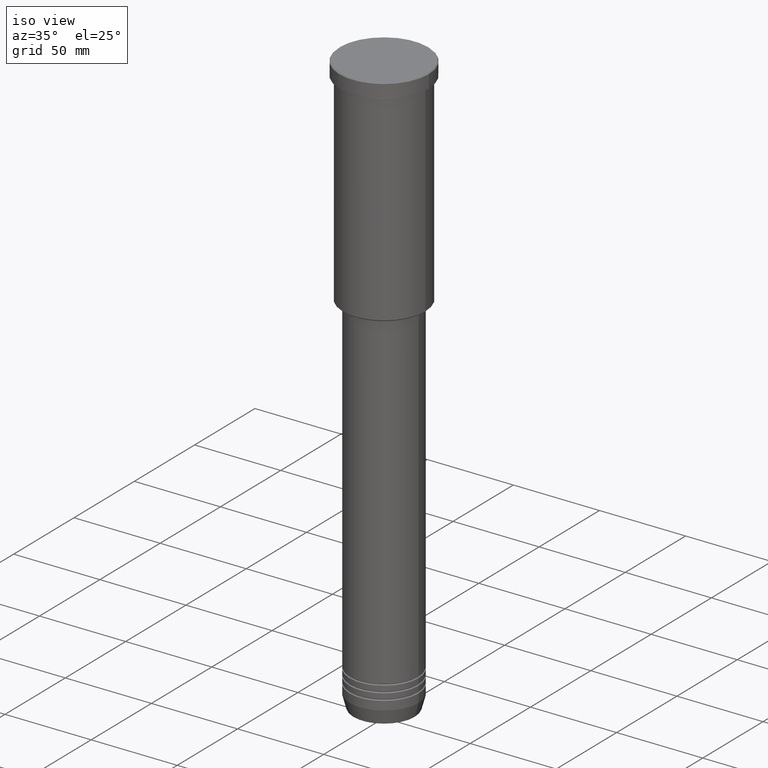
[diagram: clean part render]
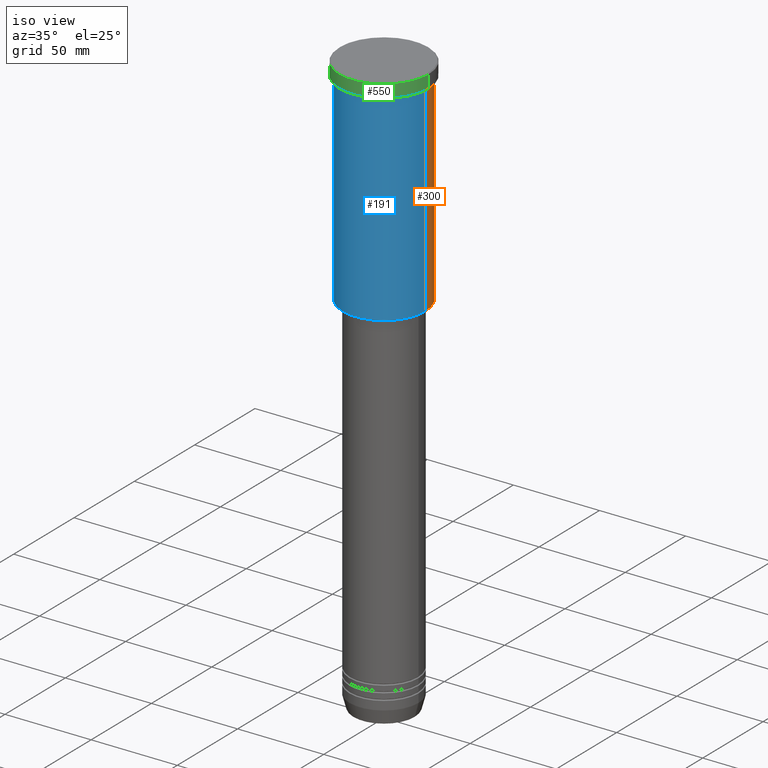
[diagram: same view with three faces highlighted in distinct colors, each labeled with its STEP entity id]
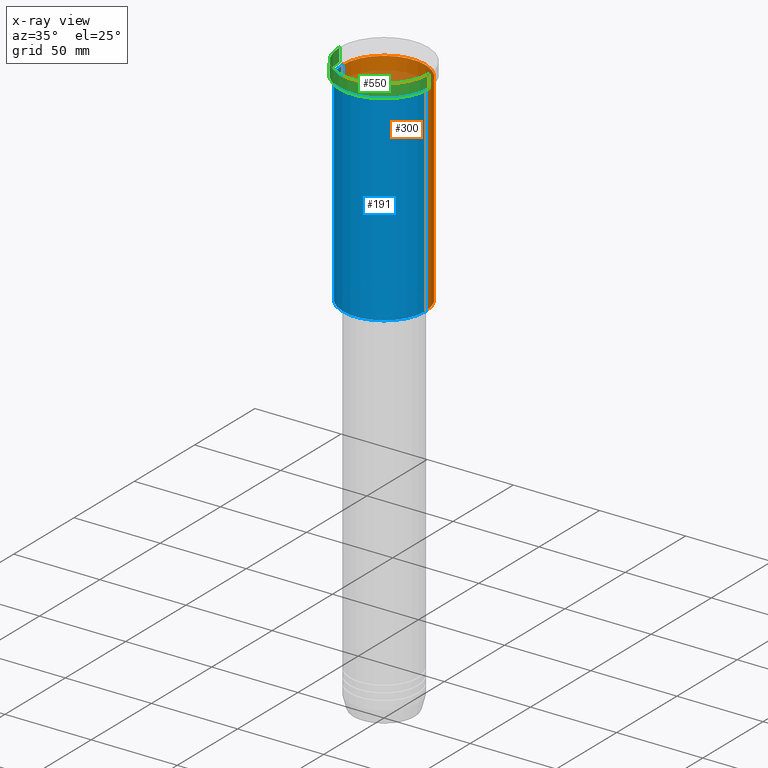
[diagram: x-ray of the same camera — body ghosted, the three highlighted faces saturated]
A machine part, iso view with three faces highlighted in distinct colors.
The next image is the same camera in x-ray (body ghosted, the three faces saturated) — at least one of them is partly hidden behind the body in this view.
Their STEP definitions:

[orange] entity #300 — the highlighted cylindrical surface (partial cylindrical patch) has radius 24 mm, axis along (-0, -0, 1).
#15 = VECTOR ( 'NONE', #1045, 1000.000000000000000 ) ;
#41 = DIRECTION ( 'NONE',  ( -0.000000000000000000, -0.000000000000000000, 1.000000000000000000 ) ) ;
#55 = CARTESIAN_POINT ( 'NONE',  ( 24.00000000000000000, 0.000000000000000000, -8.999999999999994671 ) ) ;
#65 = LINE ( 'NONE', #414, #15 ) ;
#119 = CARTESIAN_POINT ( 'NONE',  ( 0.000000000000000000, 0.000000000000000000, -8.999999999999994671 ) ) ;
#139 = CYLINDRICAL_SURFACE ( 'NONE', #962, 24.00000000000000000 ) ;
#216 = DIRECTION ( 'NONE',  ( -0.000000000000000000, -0.000000000000000000, 1.000000000000000000 ) ) ;
#249 = CIRCLE ( 'NONE', #522, 24.00000000000000000 ) ;
#300 = ADVANCED_FACE ( 'NONE', ( #767 ), #139, .T. ) ;
#303 = ORIENTED_EDGE ( 'NONE', *, *, #1013, .T. ) ;
#305 = CARTESIAN_POINT ( 'NONE',  ( 0.000000000000000000, 0.000000000000000000, 0.000000000000000000 ) ) ;
#309 = DIRECTION ( 'NONE',  ( 1.000000000000000000, 0.000000000000000000, 0.000000000000000000 ) ) ;
#319 = ORIENTED_EDGE ( 'NONE', *, *, #884, .F. ) ;
#366 = EDGE_CURVE ( 'NONE', #450, #923, #639, .T. ) ;
#390 = VECTOR ( 'NONE', #1092, 1000.000000000000000 ) ;
#414 = CARTESIAN_POINT ( 'NONE',  ( 24.00000000000000000, 0.000000000000000000, 0.000000000000000000 ) ) ;
#444 = EDGE_LOOP ( 'NONE', ( #717, #303, #942, #319 ) ) ;
#450 = VERTEX_POINT ( 'NONE', #55 ) ;
#505 = VERTEX_POINT ( 'NONE', #608 ) ;
#522 = AXIS2_PLACEMENT_3D ( 'NONE', #722, #1089, #633 ) ;
#530 = CARTESIAN_POINT ( 'NONE',  ( 24.00000000000000000, 0.000000000000000000, -125.5000000000000000 ) ) ;
#608 = CARTESIAN_POINT ( 'NONE',  ( -24.00000000000000000, 2.939152317953647894E-15, -125.5000000000000000 ) ) ;
#614 = LINE ( 'NONE', #725, #390 ) ;
#633 = DIRECTION ( 'NONE',  ( -1.000000000000000000, 0.000000000000000000, 0.000000000000000000 ) ) ;
#639 = CIRCLE ( 'NONE', #911, 24.00000000000000000 ) ;
#657 = EDGE_CURVE ( 'NONE', #681, #505, #249, .T. ) ;
#681 = VERTEX_POINT ( 'NONE', #530 ) ;
#717 = ORIENTED_EDGE ( 'NONE', *, *, #657, .T. ) ;
#722 = CARTESIAN_POINT ( 'NONE',  ( 0.000000000000000000, 0.000000000000000000, -125.5000000000000000 ) ) ;
#725 = CARTESIAN_POINT ( 'NONE',  ( -24.00000000000000000, 2.939152317953647894E-15, 0.000000000000000000 ) ) ;
#767 = FACE_OUTER_BOUND ( 'NONE', #444, .T. ) ;
#780 = CARTESIAN_POINT ( 'NONE',  ( -24.00000000000000000, 2.939152317953647894E-15, -8.999999999999994671 ) ) ;
#884 = EDGE_CURVE ( 'NONE', #681, #450, #65, .T. ) ;
#911 = AXIS2_PLACEMENT_3D ( 'NONE', #119, #41, #309 ) ;
#923 = VERTEX_POINT ( 'NONE', #780 ) ;
#942 = ORIENTED_EDGE ( 'NONE', *, *, #366, .F. ) ;
#952 = DIRECTION ( 'NONE',  ( 1.000000000000000000, 0.000000000000000000, 0.000000000000000000 ) ) ;
#962 = AXIS2_PLACEMENT_3D ( 'NONE', #305, #216, #952 ) ;
#1013 = EDGE_CURVE ( 'NONE', #505, #923, #614, .T. ) ;
#1045 = DIRECTION ( 'NONE',  ( -0.000000000000000000, -0.000000000000000000, 1.000000000000000000 ) ) ;
#1089 = DIRECTION ( 'NONE',  ( -0.000000000000000000, -0.000000000000000000, 1.000000000000000000 ) ) ;
#1092 = DIRECTION ( 'NONE',  ( -0.000000000000000000, -0.000000000000000000, 1.000000000000000000 ) ) ;

[blue] entity #191 — the highlighted cylindrical surface (partial cylindrical patch) has radius 24 mm, axis along (-0, -0, 1).
#15 = VECTOR ( 'NONE', #1045, 1000.000000000000000 ) ;
#34 = FACE_OUTER_BOUND ( 'NONE', #936, .T. ) ;
#55 = CARTESIAN_POINT ( 'NONE',  ( 24.00000000000000000, 0.000000000000000000, -8.999999999999994671 ) ) ;
#65 = LINE ( 'NONE', #414, #15 ) ;
#130 = CARTESIAN_POINT ( 'NONE',  ( 0.000000000000000000, 0.000000000000000000, 0.000000000000000000 ) ) ;
#148 = EDGE_CURVE ( 'NONE', #923, #450, #499, .T. ) ;
#163 = DIRECTION ( 'NONE',  ( -0.000000000000000000, -0.000000000000000000, 1.000000000000000000 ) ) ;
#183 = CIRCLE ( 'NONE', #480, 24.00000000000000000 ) ;
#191 = ADVANCED_FACE ( 'NONE', ( #34 ), #946, .T. ) ;
#207 = CARTESIAN_POINT ( 'NONE',  ( 0.000000000000000000, 0.000000000000000000, -8.999999999999994671 ) ) ;
#210 = ORIENTED_EDGE ( 'NONE', *, *, #1035, .T. ) ;
#365 = ORIENTED_EDGE ( 'NONE', *, *, #148, .F. ) ;
#382 = DIRECTION ( 'NONE',  ( 1.000000000000000000, 0.000000000000000000, 0.000000000000000000 ) ) ;
#390 = VECTOR ( 'NONE', #1092, 1000.000000000000000 ) ;
#395 = ORIENTED_EDGE ( 'NONE', *, *, #884, .T. ) ;
#414 = CARTESIAN_POINT ( 'NONE',  ( 24.00000000000000000, 0.000000000000000000, 0.000000000000000000 ) ) ;
#435 = DIRECTION ( 'NONE',  ( -1.000000000000000000, 0.000000000000000000, 0.000000000000000000 ) ) ;
#450 = VERTEX_POINT ( 'NONE', #55 ) ;
#455 = CARTESIAN_POINT ( 'NONE',  ( 0.000000000000000000, 0.000000000000000000, -125.5000000000000000 ) ) ;
#480 = AXIS2_PLACEMENT_3D ( 'NONE', #455, #163, #435 ) ;
#499 = CIRCLE ( 'NONE', #1131, 24.00000000000000000 ) ;
#505 = VERTEX_POINT ( 'NONE', #608 ) ;
#530 = CARTESIAN_POINT ( 'NONE',  ( 24.00000000000000000, 0.000000000000000000, -125.5000000000000000 ) ) ;
#608 = CARTESIAN_POINT ( 'NONE',  ( -24.00000000000000000, 2.939152317953647894E-15, -125.5000000000000000 ) ) ;
#614 = LINE ( 'NONE', #725, #390 ) ;
#681 = VERTEX_POINT ( 'NONE', #530 ) ;
#725 = CARTESIAN_POINT ( 'NONE',  ( -24.00000000000000000, 2.939152317953647894E-15, 0.000000000000000000 ) ) ;
#780 = CARTESIAN_POINT ( 'NONE',  ( -24.00000000000000000, 2.939152317953647894E-15, -8.999999999999994671 ) ) ;
#852 = DIRECTION ( 'NONE',  ( -0.000000000000000000, -0.000000000000000000, 1.000000000000000000 ) ) ;
#884 = EDGE_CURVE ( 'NONE', #681, #450, #65, .T. ) ;
#923 = VERTEX_POINT ( 'NONE', #780 ) ;
#936 = EDGE_LOOP ( 'NONE', ( #1034, #210, #395, #365 ) ) ;
#946 = CYLINDRICAL_SURFACE ( 'NONE', #1019, 24.00000000000000000 ) ;
#1013 = EDGE_CURVE ( 'NONE', #505, #923, #614, .T. ) ;
#1019 = AXIS2_PLACEMENT_3D ( 'NONE', #130, #1025, #1105 ) ;
#1025 = DIRECTION ( 'NONE',  ( -0.000000000000000000, -0.000000000000000000, 1.000000000000000000 ) ) ;
#1034 = ORIENTED_EDGE ( 'NONE', *, *, #1013, .F. ) ;
#1035 = EDGE_CURVE ( 'NONE', #505, #681, #183, .T. ) ;
#1045 = DIRECTION ( 'NONE',  ( -0.000000000000000000, -0.000000000000000000, 1.000000000000000000 ) ) ;
#1092 = DIRECTION ( 'NONE',  ( -0.000000000000000000, -0.000000000000000000, 1.000000000000000000 ) ) ;
#1105 = DIRECTION ( 'NONE',  ( 1.000000000000000000, 0.000000000000000000, 0.000000000000000000 ) ) ;
#1131 = AXIS2_PLACEMENT_3D ( 'NONE', #207, #852, #382 ) ;

[green] entity #550 — the highlighted cylindrical surface (partial cylindrical patch) has radius 26 mm, axis along (-0, -0, 1).
#42 = EDGE_CURVE ( 'NONE', #324, #760, #804, .T. ) ;
#45 = CARTESIAN_POINT ( 'NONE',  ( 0.000000000000000000, 0.000000000000000000, -7.999999999999992895 ) ) ;
#143 = DIRECTION ( 'NONE',  ( 1.000000000000000000, 0.000000000000000000, 0.000000000000000000 ) ) ;
#166 = CYLINDRICAL_SURFACE ( 'NONE', #850, 26.00000000000000000 ) ;
#171 = DIRECTION ( 'NONE',  ( -0.000000000000000000, -0.000000000000000000, 1.000000000000000000 ) ) ;
#176 = DIRECTION ( 'NONE',  ( -0.000000000000000000, -0.000000000000000000, 1.000000000000000000 ) ) ;
#178 = ORIENTED_EDGE ( 'NONE', *, *, #426, .T. ) ;
#184 = CARTESIAN_POINT ( 'NONE',  ( 0.000000000000000000, 0.000000000000000000, 0.000000000000000000 ) ) ;
#218 = EDGE_CURVE ( 'NONE', #752, #842, #396, .T. ) ;
#235 = CARTESIAN_POINT ( 'NONE',  ( -26.00000000000000000, 3.184081677783118191E-15, -0.4999999999999692468 ) ) ;
#260 = EDGE_LOOP ( 'NONE', ( #568, #528, #845, #178 ) ) ;
#308 = AXIS2_PLACEMENT_3D ( 'NONE', #1123, #675, #1038 ) ;
#324 = VERTEX_POINT ( 'NONE', #1142 ) ;
#396 = LINE ( 'NONE', #1109, #849 ) ;
#426 = EDGE_CURVE ( 'NONE', #842, #760, #833, .T. ) ;
#431 = CARTESIAN_POINT ( 'NONE',  ( 26.00000000000000000, 0.000000000000000000, -7.999999999999992895 ) ) ;
#461 = VECTOR ( 'NONE', #171, 1000.000000000000000 ) ;
#468 = DIRECTION ( 'NONE',  ( -0.000000000000000000, -0.000000000000000000, 1.000000000000000000 ) ) ;
#523 = CIRCLE ( 'NONE', #559, 26.00000000000000000 ) ;
#528 = ORIENTED_EDGE ( 'NONE', *, *, #802, .T. ) ;
#549 = DIRECTION ( 'NONE',  ( 1.000000000000000000, 0.000000000000000000, 0.000000000000000000 ) ) ;
#550 = ADVANCED_FACE ( 'NONE', ( #1149 ), #166, .T. ) ;
#559 = AXIS2_PLACEMENT_3D ( 'NONE', #45, #959, #143 ) ;
#568 = ORIENTED_EDGE ( 'NONE', *, *, #42, .F. ) ;
#675 = DIRECTION ( 'NONE',  ( 0.000000000000000000, 0.000000000000000000, -1.000000000000000000 ) ) ;
#752 = VERTEX_POINT ( 'NONE', #431 ) ;
#760 = VERTEX_POINT ( 'NONE', #235 ) ;
#802 = EDGE_CURVE ( 'NONE', #324, #752, #523, .T. ) ;
#804 = LINE ( 'NONE', #909, #461 ) ;
#833 = CIRCLE ( 'NONE', #308, 26.00000000000000000 ) ;
#842 = VERTEX_POINT ( 'NONE', #970 ) ;
#845 = ORIENTED_EDGE ( 'NONE', *, *, #218, .T. ) ;
#849 = VECTOR ( 'NONE', #468, 1000.000000000000000 ) ;
#850 = AXIS2_PLACEMENT_3D ( 'NONE', #184, #176, #549 ) ;
#909 = CARTESIAN_POINT ( 'NONE',  ( -26.00000000000000000, 3.184081677783118191E-15, 0.000000000000000000 ) ) ;
#959 = DIRECTION ( 'NONE',  ( -0.000000000000000000, -0.000000000000000000, 1.000000000000000000 ) ) ;
#970 = CARTESIAN_POINT ( 'NONE',  ( 26.00000000000000000, 0.000000000000000000, -0.4999999999999692468 ) ) ;
#1038 = DIRECTION ( 'NONE',  ( 1.000000000000000000, 0.000000000000000000, 0.000000000000000000 ) ) ;
#1109 = CARTESIAN_POINT ( 'NONE',  ( 26.00000000000000000, 0.000000000000000000, 0.000000000000000000 ) ) ;
#1123 = CARTESIAN_POINT ( 'NONE',  ( 0.000000000000000000, 0.000000000000000000, -0.4999999999999692468 ) ) ;
#1142 = CARTESIAN_POINT ( 'NONE',  ( -26.00000000000000000, 3.184081677783118191E-15, -7.999999999999992895 ) ) ;
#1149 = FACE_OUTER_BOUND ( 'NONE', #260, .T. ) ;